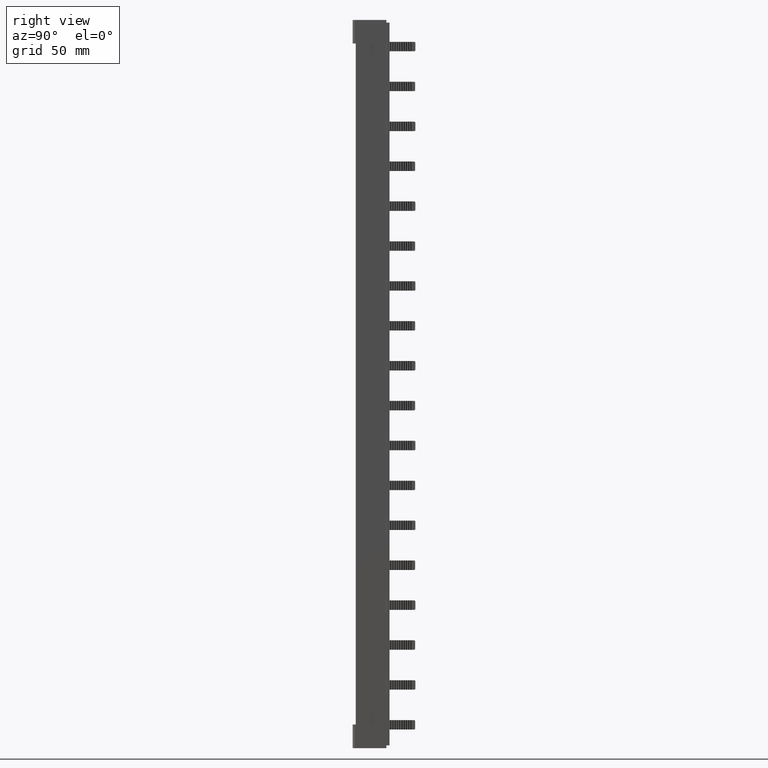
[diagram: clean part render]
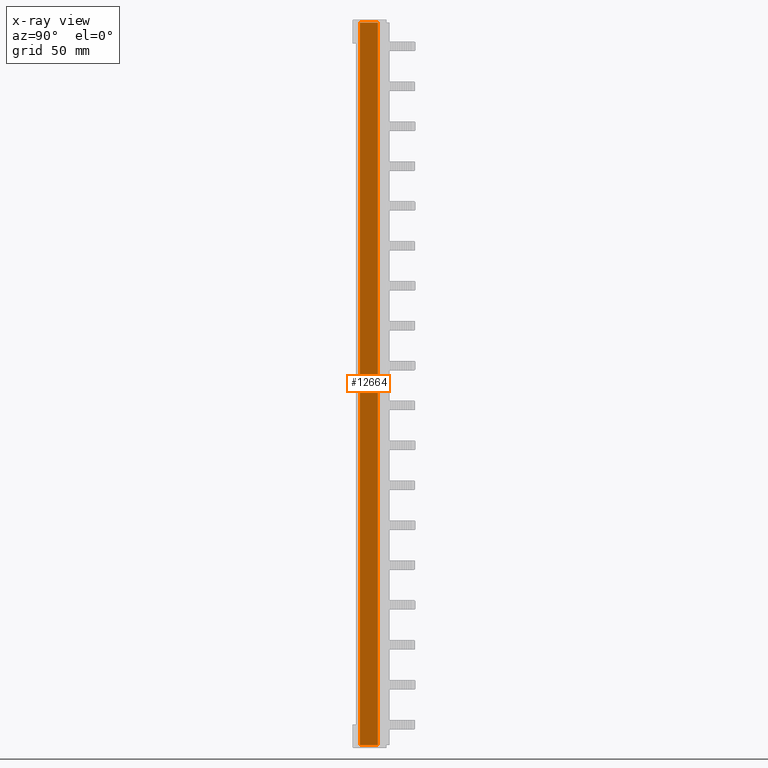
[diagram: x-ray — body ghosted, one internal face saturated and labeled with its STEP entity id]
A machine part, right view, then the same camera in x-ray: the body is ghosted and one INTERNAL B-rep face — a face not visible from any outside direction — is saturated and labeled: STEP entity #12664.
In plain terms, the highlighted planar face has unit normal (-1, 0, 0).
Its self-contained STEP definition (entity closure, byte-faithful):
#358 = VECTOR ( 'NONE', #7708, 1000.000000000000000 ) ;
#1427 = EDGE_CURVE ( 'NONE', #20241, #20214, #14809, .T. ) ;
#1438 = EDGE_CURVE ( 'NONE', #20202, #20217, #14795, .T. ) ;
#1472 = EDGE_CURVE ( 'NONE', #20241, #20217, #14822, .T. ) ;
#2088 = EDGE_CURVE ( 'NONE', #20202, #20214, #7680, .T. ) ;
#4469 = FACE_OUTER_BOUND ( 'NONE', #22773, .T. ) ;
#4487 = PLANE ( 'NONE',  #10287 ) ;
#4500 = DIRECTION ( 'NONE',  ( -1.000000000000000000, 0.0000000000000000000, 0.0000000000000000000 ) ) ;
#4513 = CARTESIAN_POINT ( 'NONE',  ( 5.599999999999383200, 1.799999999999940500, 220.2000000000000500 ) ) ;
#4514 = DIRECTION ( 'NONE',  ( 0.0000000000000000000, 0.0000000000000000000, 1.000000000000000000 ) ) ;
#7680 = LINE ( 'NONE', #7701, #358 ) ;
#7701 = CARTESIAN_POINT ( 'NONE',  ( 5.599999999999383200, 9.799999999999947400, 220.2000000000000500 ) ) ;
#7708 = DIRECTION ( 'NONE',  ( -0.0000000000000000000, 0.0000000000000000000, 1.000000000000000000 ) ) ;
#10287 = AXIS2_PLACEMENT_3D ( 'NONE', #4513, #4500, #4514 ) ;
#12664 = ADVANCED_FACE ( 'NONE', ( #4469 ), #4487, .T. ) ;
#14750 = DIRECTION ( 'NONE',  ( -0.0000000000000000000, -1.000000000000000000, -0.0000000000000000000 ) ) ;
#14760 = CARTESIAN_POINT ( 'NONE',  ( 5.599999999999383200, 0.4000000000001606700, 217.7999999999961500 ) ) ;
#14780 = CARTESIAN_POINT ( 'NONE',  ( 5.599999999999383200, 0.4000000000001606700, -103.8000000000038800 ) ) ;
#14795 = LINE ( 'NONE', #14780, #31468 ) ;
#14798 = DIRECTION ( 'NONE',  ( 0.0000000000000000000, 1.000000000000000000, 0.0000000000000000000 ) ) ;
#14809 = LINE ( 'NONE', #14760, #31457 ) ;
#14822 = LINE ( 'NONE', #14846, #31518 ) ;
#14829 = DIRECTION ( 'NONE',  ( -0.0000000000000000000, 0.0000000000000000000, -1.000000000000000000 ) ) ;
#14846 = CARTESIAN_POINT ( 'NONE',  ( 5.599999999999383200, 1.799999999999940500, 220.2000000000000500 ) ) ;
#20202 = VERTEX_POINT ( 'NONE', #30285 ) ;
#20214 = VERTEX_POINT ( 'NONE', #30244 ) ;
#20217 = VERTEX_POINT ( 'NONE', #30265 ) ;
#20241 = VERTEX_POINT ( 'NONE', #30273 ) ;
#22773 = EDGE_LOOP ( 'NONE', ( #28600, #28651, #28649, #28663 ) ) ;
#28600 = ORIENTED_EDGE ( 'NONE', *, *, #1472, .F. ) ;
#28649 = ORIENTED_EDGE ( 'NONE', *, *, #2088, .F. ) ;
#28651 = ORIENTED_EDGE ( 'NONE', *, *, #1427, .T. ) ;
#28663 = ORIENTED_EDGE ( 'NONE', *, *, #1438, .T. ) ;
#30244 = CARTESIAN_POINT ( 'NONE',  ( 5.599999999999383200, 9.799999999999947400, 217.7999999999970600 ) ) ;
#30265 = CARTESIAN_POINT ( 'NONE',  ( 5.599999999999383200, 1.799999999999940500, -103.8000000000029200 ) ) ;
#30273 = CARTESIAN_POINT ( 'NONE',  ( 5.599999999999383200, 1.799999999999940500, 217.7999999999967700 ) ) ;
#30285 = CARTESIAN_POINT ( 'NONE',  ( 5.599999999999383200, 9.799999999999947400, -103.8000000000031100 ) ) ;
#31457 = VECTOR ( 'NONE', #14798, 1000.000000000000000 ) ;
#31468 = VECTOR ( 'NONE', #14750, 1000.000000000000000 ) ;
#31518 = VECTOR ( 'NONE', #14829, 1000.000000000000000 ) ;